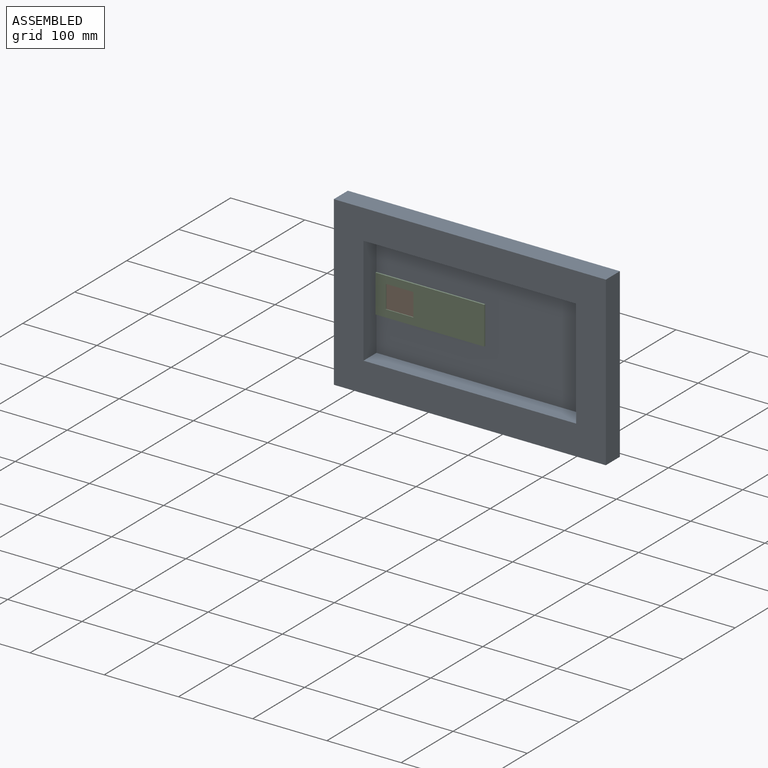
[diagram: assembled view]
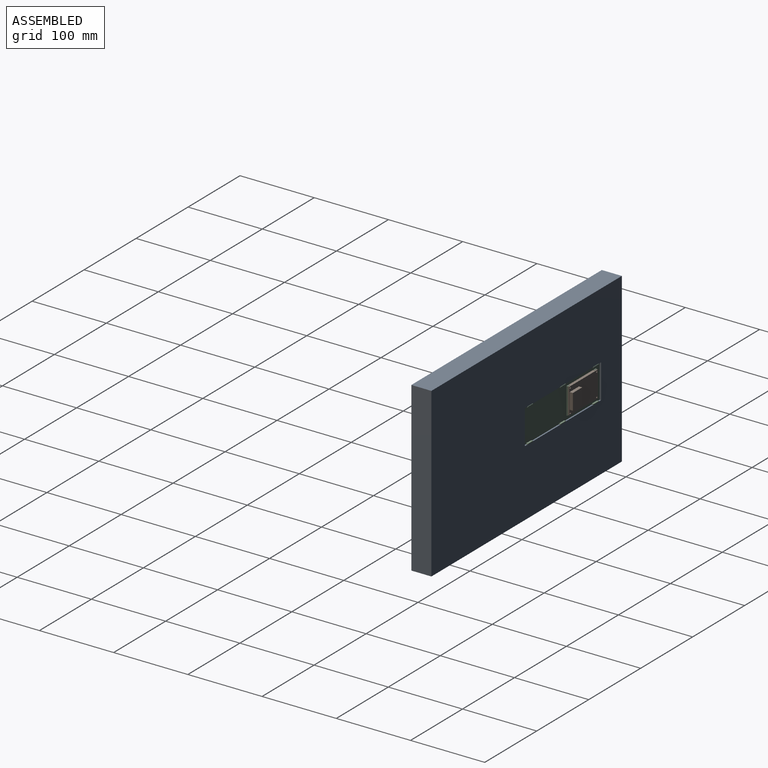
[diagram: assembled view, second angle]
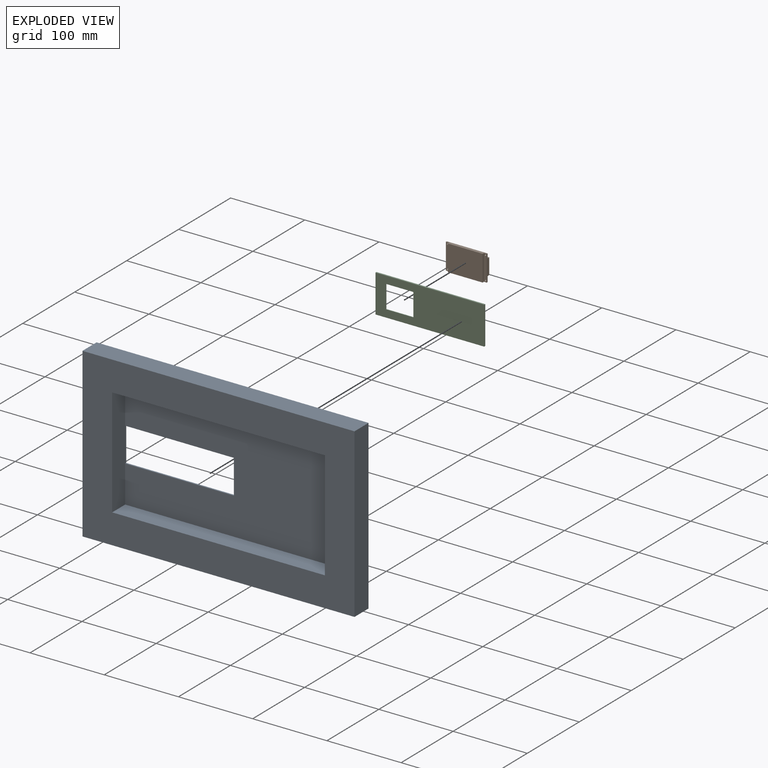
[diagram: exploded view]
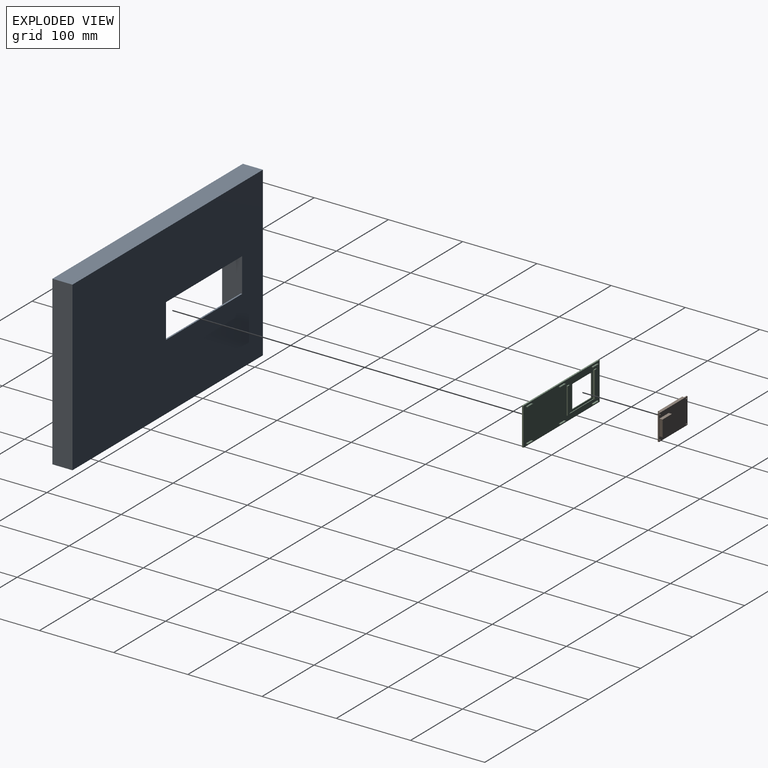
[diagram: exploded view, second angle]
ASSEMBLY  parts=3 mates=4
PART A: 14 faces, bbox 366.5x27x226 mm
  f0: plane 366.5x226mm, normal (0,1,0), area 76090mm2, adj f2,f3,f4,f7,f8,f9,f10,f12
  f1: plane 286.5x146mm, normal (0,-1,0), area 35090mm2, adj f2,f3,f4,f5,f6,f7,f11
  f2: plane 146.5x2mm, normal (0,0,1), area 293mm2, adj f0,f1,f3,f7
  f3: plane 46x2mm, normal (-1,0,0), area 92mm2, adj f0,f1,f2,f4
  f4: plane 146.5x2mm, normal (0,0,-1), area 293mm2, adj f0,f1,f3,f7
  f5: plane 286.5x25mm, normal (0,0,-1), area 7162.5mm2, adj f1,f7,f11,f13
  f6: plane 286.5x25mm, normal (0,0,1), area 7162.5mm2, adj f1,f7,f11,f13
  f7: plane 146x27mm, normal (1,0,0), area 3742mm2, adj f0,f1,f2,f4,f5,f6,f13
  f8: plane 366.5x27mm, normal (0,0,1), area 9895.5mm2, adj f0,f9,f12,f13
  f9: plane 226x27mm, normal (-1,0,0), area 6102mm2, adj f0,f8,f10,f13
  f10: plane 366.5x27mm, normal (0,0,-1), area 9895.5mm2, adj f0,f9,f12,f13
  f11: plane 146x25mm, normal (-1,0,0), area 3650mm2, adj f1,f5,f6,f13
  f12: plane 226x27mm, normal (1,0,0), area 6102mm2, adj f0,f8,f10,f13
  f13: plane 366.5x226mm, normal (0,-1,0), area 41000mm2, adj f5,f6,f7,f8,f9,f10,f11,f12
PART B: 19 faces, bbox 55x8.4x35 mm
  f0: plane 35x3.8mm, normal (0,-1,0), area 126.7mm2, adj f2,f3,f4,f5,f7,f16
  f1: plane 35x1.6mm, normal (-1,0,0), area 56mm2, adj f2,f7,f9,f10
  f2: plane 55x4.1mm, normal (0,0,-1), area 205mm2, adj f0,f1,f3,f9,f10,f16,f17,f18
  f3: plane 35x1.6mm, normal (1,0,0), area 56mm2, adj f0,f2,f7,f10
  f4: cylinder r=1mm len=2mm, axis (0,1,0), area 10.1mm2, adj f0,f10
  f5: cylinder r=1mm len=2mm, axis (0,1,0), area 10.1mm2, adj f0,f10
  f6: cylinder r=1mm len=2mm, axis (0,1,0), area 10.1mm2, adj f9,f10
  f7: plane 55x4.1mm, normal (0,0,1), area 205mm2, adj f0,f1,f3,f9,f10,f16,f17,f18
  f8: cylinder r=1mm len=2mm, axis (0,1,0), area 10.1mm2, adj f9,f10
  f9: plane 35x4.4mm, normal (0,-1,0), area 147.7mm2, adj f1,f2,f6,f7,f8,f17
  f10: plane 55x35mm, normal (0,1,0), area 1523.6mm2, adj f1,f2,f3,f4,f5,f6,f7,f8
  f11: plane 21.6x4.3mm, normal (-1,0,0), area 92.9mm2, adj f10,f12,f14,f15
  f12: plane 18x4.3mm, normal (0,0,1), area 77.4mm2, adj f10,f11,f13,f15
  f13: plane 21.6x4.3mm, normal (1,0,0), area 92.9mm2, adj f10,f12,f14,f15
  f14: plane 18x4.3mm, normal (0,0,-1), area 77.4mm2, adj f10,f11,f13,f15
  f15: plane 21.6x18mm, normal (0,1,0), area 388.8mm2, adj f11,f12,f13,f14
  f16: plane 35x2.5mm, normal (1,0,0), area 87.5mm2, adj f0,f2,f7,f18
  f17: plane 35x2.5mm, normal (-1,0,0), area 87.5mm2, adj f2,f7,f9,f18
  f18: plane 46.8x35mm, normal (0,-1,0), area 1638mm2, adj f2,f7,f16,f17
PART C: 65 faces, bbox 146.5x4.5x51 mm
  f0: plane 146.5x51mm, normal (0,1,0), area 5395.5mm2, adj f2,f3,f4,f5,f6,f7,f8,f9
  f1: plane 146.5x51mm, normal (0,-1,0), area 6321.4mm2, adj f2,f3,f4,f5,f48,f49,f50,f51
  f2: plane 51x2mm, normal (1,0,0), area 102mm2, adj f0,f1,f3,f5
  f3: plane 146.5x2mm, normal (0,0,1), area 293mm2, adj f0,f1,f2,f4
  f4: plane 51x2mm, normal (-1,0,0), area 102mm2, adj f0,f1,f3,f5
  f5: plane 146.5x2mm, normal (0,0,-1), area 293mm2, adj f0,f1,f2,f4
  f6: plane 2.5x1.5mm, normal (1,0,0), area 2.6mm2, adj f0,f7,f9,f42,f43,f44
  f7: plane 10x2mm, normal (0,0,1), area 20mm2, adj f0,f6,f8,f42
  f8: plane 2.5x1.5mm, normal (-1,0,0), area 2.6mm2, adj f0,f7,f9,f42,f43,f44
  f9: plane 10x2.5mm, normal (0,0,-1), area 25mm2, adj f0,f6,f8,f43
  f10: plane 2.5x1.5mm, normal (1,0,0), area 2.6mm2, adj f0,f11,f13,f36,f37,f38
  f11: plane 10x2mm, normal (0,0,1), area 20mm2, adj f0,f10,f12,f36
  f12: plane 2.5x1.5mm, normal (-1,0,0), area 2.6mm2, adj f0,f11,f13,f36,f37,f38
  f13: plane 10x2.5mm, normal (0,0,-1), area 25mm2, adj f0,f10,f12,f37
  f14: plane 2.5x1.5mm, normal (1,0,0), area 2.6mm2, adj f0,f15,f17,f30,f31,f32
  f15: plane 10x2mm, normal (0,0,1), area 20mm2, adj f0,f14,f16,f30
  f16: plane 2.5x1.5mm, normal (-1,0,0), area 2.6mm2, adj f0,f15,f17,f30,f31,f32
  f17: plane 10x2.5mm, normal (0,0,-1), area 25mm2, adj f0,f14,f16,f31
  f18: plane 10x2mm, normal (0,0,-1), area 20mm2, adj f0,f19,f21,f45
  f19: plane 2.5x1.5mm, normal (1,0,0), area 2.6mm2, adj f0,f18,f20,f45,f46,f47
  f20: plane 10x2.5mm, normal (0,0,1), area 25mm2, adj f0,f19,f21,f47
  f21: plane 2.5x1.5mm, normal (-1,0,0), area 2.6mm2, adj f0,f18,f20,f45,f46,f47
  f22: plane 2.5x1.5mm, normal (-1,0,0), area 2.6mm2, adj f0,f23,f25,f39,f40,f41
  f23: plane 10x2mm, normal (0,0,-1), area 20mm2, adj f0,f22,f24,f39
  f24: plane 2.5x1.5mm, normal (1,0,0), area 2.6mm2, adj f0,f23,f25,f39,f40,f41
  f25: plane 10x2.5mm, normal (0,0,1), area 25mm2, adj f0,f22,f24,f41
  f26: plane 10x2mm, normal (0,0,-1), area 20mm2, adj f0,f27,f29,f35
  f27: plane 2.5x1.5mm, normal (1,0,0), area 2.6mm2, adj f0,f26,f28,f33,f34,f35
  f28: plane 10x2.5mm, normal (0,0,1), area 25mm2, adj f0,f27,f29,f34
  f29: plane 2.5x1.5mm, normal (-1,0,0), area 2.6mm2, adj f0,f26,f28,f33,f34,f35
  f30: plane 10x0.5mm, normal (0,-1,0), area 5mm2, adj f14,f15,f16,f32
  f31: plane 10x1mm, normal (0,1,0), area 10mm2, adj f14,f16,f17,f32
  f32: plane 10x0.5mm, normal (0,0.71,0.71), area 7.1mm2, adj f14,f16,f30,f31
  f33: plane 10x0.5mm, normal (0,0.71,-0.71), area 7.1mm2, adj f27,f29,f34,f35
  f34: plane 10x1mm, normal (0,1,0), area 10mm2, adj f27,f28,f29,f33
  f35: plane 10x0.5mm, normal (0,-1,0), area 5mm2, adj f26,f27,f29,f33
  f36: plane 10x0.5mm, normal (0,-1,0), area 5mm2, adj f10,f11,f12,f38
  f37: plane 10x1mm, normal (0,1,0), area 10mm2, adj f10,f12,f13,f38
  f38: plane 10x0.5mm, normal (0,0.71,0.71), area 7.1mm2, adj f10,f12,f36,f37
  f39: plane 10x0.5mm, normal (0,-1,0), area 5mm2, adj f22,f23,f24,f40
  f40: plane 10x0.5mm, normal (0,0.71,-0.71), area 7.1mm2, adj f22,f24,f39,f41
  f41: plane 10x1mm, normal (0,1,0), area 10mm2, adj f22,f24,f25,f40
  f42: plane 10x0.5mm, normal (0,-1,0), area 5mm2, adj f6,f7,f8,f44
  f43: plane 10x1mm, normal (0,1,0), area 10mm2, adj f6,f8,f9,f44
  f44: plane 10x0.5mm, normal (0,0.71,0.71), area 7.1mm2, adj f6,f8,f42,f43
  f45: plane 10x0.5mm, normal (0,-1,0), area 5mm2, adj f18,f19,f21,f46
  f46: plane 10x0.5mm, normal (0,0.71,-0.71), area 7.1mm2, adj f19,f21,f45,f47
  f47: plane 10x1mm, normal (0,1,0), area 10mm2, adj f19,f20,f21,f46
  f48: plane 37.1x1mm, normal (0,0,-1), area 37.1mm2, adj f1,f49,f51,f56
  f49: plane 31x1mm, normal (1,0,0), area 31mm2, adj f1,f48,f50,f56
  f50: plane 37.1x1mm, normal (0,0,1), area 37.1mm2, adj f1,f49,f51,f56
  f51: plane 31x1mm, normal (-1,0,0), area 31mm2, adj f1,f48,f50,f56
  f52: plane 36x2.5mm, normal (-1,0,0), area 90mm2, adj f53,f55,f56,f57,f58,f60
  f53: plane 48x1mm, normal (0,0,-1), area 48mm2, adj f0,f52,f54,f56
  f54: plane 36x2.5mm, normal (1,0,0), area 90mm2, adj f53,f55,f56,f61,f63,f64
  f55: plane 48x1mm, normal (0,0,1), area 48mm2, adj f0,f52,f54,f56
  f56: plane 48x36mm, normal (0,1,0), area 577.9mm2, adj f48,f49,f50,f51,f52,f53,f54,f55
  f57: plane 4x1.5mm, normal (0,0,1), area 6mm2, adj f0,f52,f59,f60
  f58: plane 4x1.5mm, normal (0,0,-1), area 6mm2, adj f0,f52,f59,f60
  f59: plane 36x1.5mm, normal (1,0,0), area 54mm2, adj f0,f57,f58,f60
  f60: plane 36x4mm, normal (0,1,0), area 144mm2, adj f52,f57,f58,f59
  f61: plane 4x1.5mm, normal (0,0,1), area 6mm2, adj f0,f54,f62,f64
  f62: plane 36x1.5mm, normal (-1,0,0), area 54mm2, adj f0,f61,f63,f64
  f63: plane 4x1.5mm, normal (0,0,-1), area 6mm2, adj f0,f54,f62,f64
  f64: plane 36x4mm, normal (0,1,0), area 144mm2, adj f54,f61,f62,f63
PLACE A t=(-78.87,79.4,-10.88)mm fixed
PLACE B t=(-71.04,82.5,-5.3)mm
PLACE C t=(-78.87,79.4,-10.88)mm
MATE planar C.f0 <-> A.f1  axis (0,1,0) through (8.49,79.4,12.12)mm
MATE planar A.f7 <-> C.f4  axis (1,0,0) through (-78.87,67.24,12.12)mm
MATE planar B.f18 <-> C.f56  axis (0,-1,0) through (-43.24,78.4,12.2)mm
MATE planar A.f2 <-> C.f18  axis (0,0,1) through (-5.62,80.4,-10.88)mm
